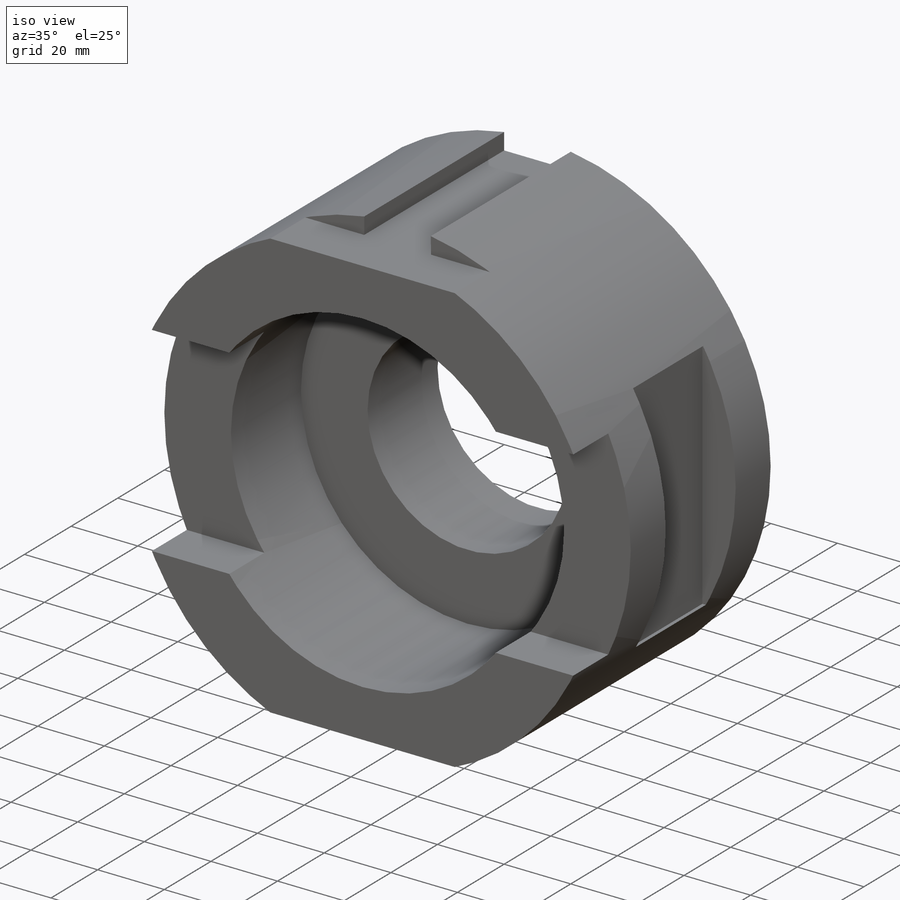
[diagram: iso view]
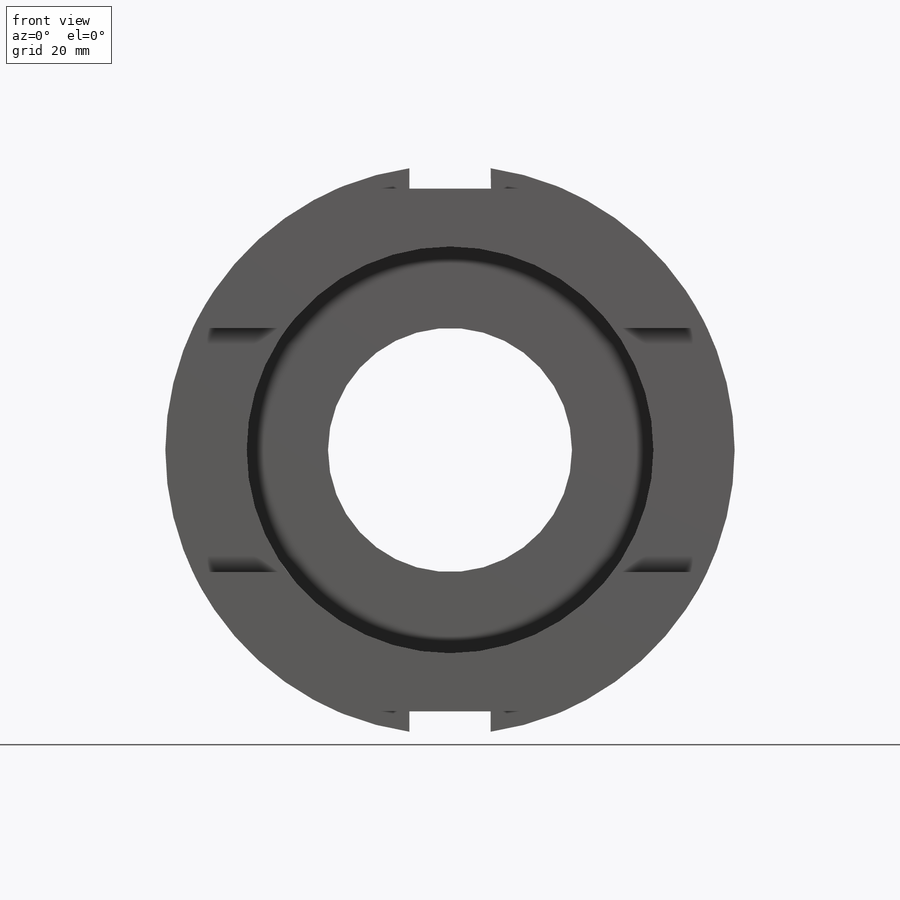
[diagram: front view]
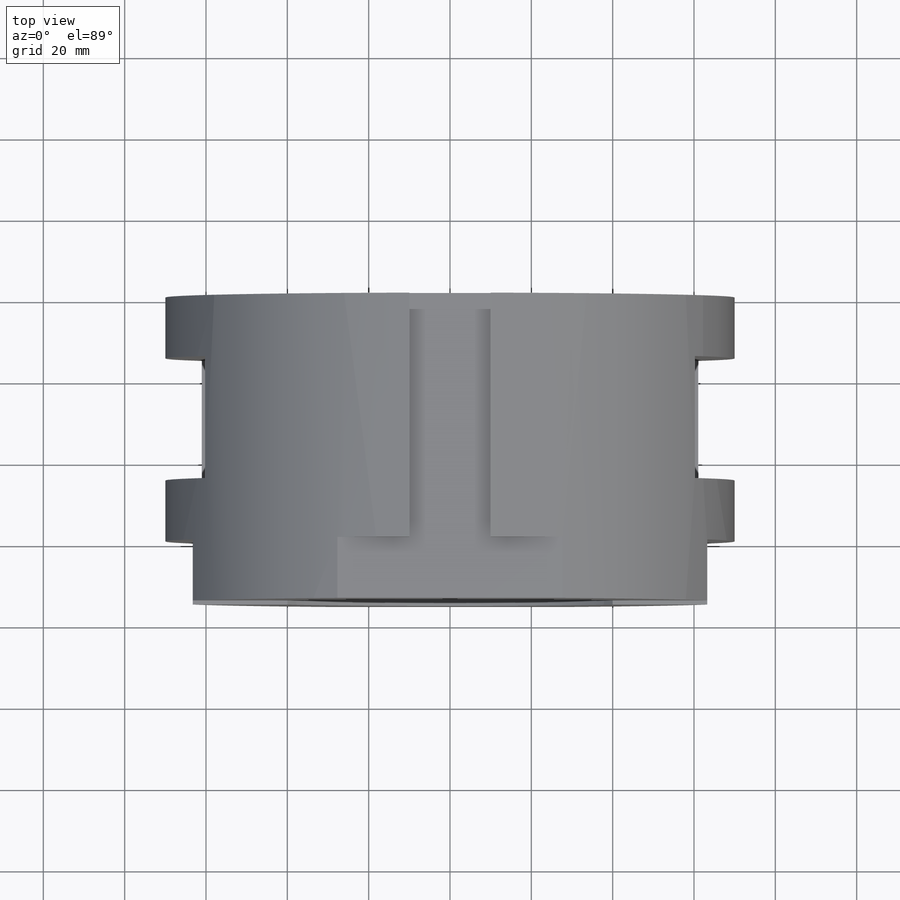
[diagram: top view]
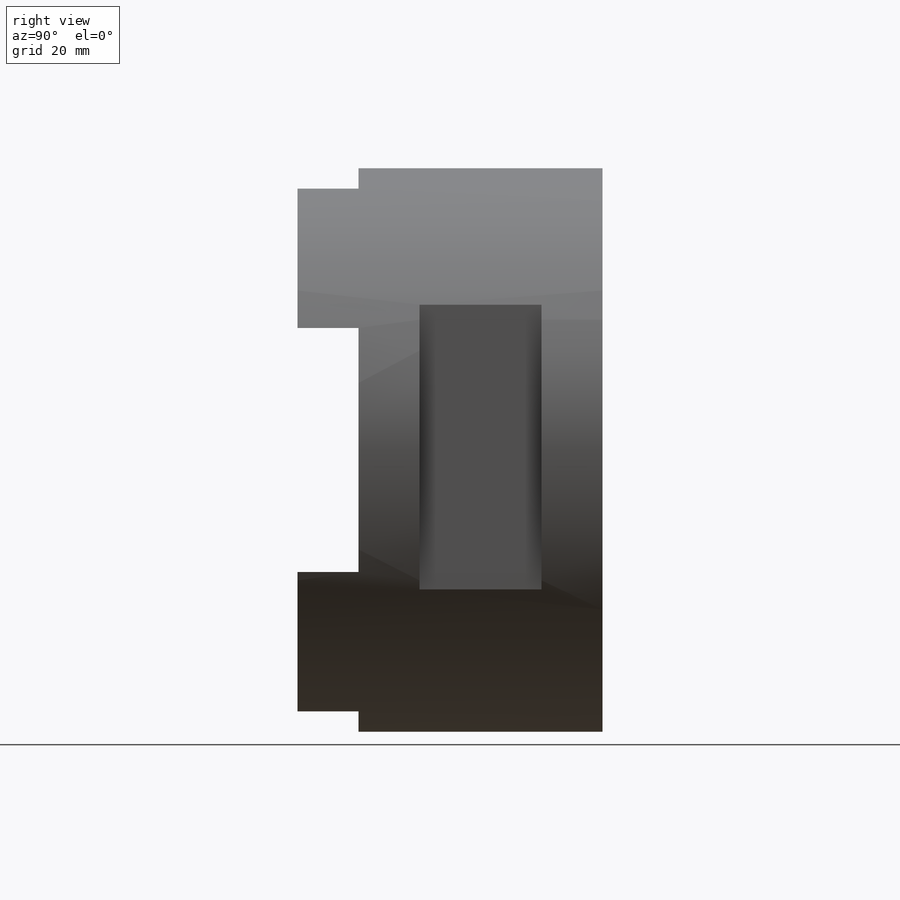
[diagram: right view]
SOLIDWORKS PART (.sldprt)
format: sldprt  version: not decoded by parser v0  size: 357,376 bytes
history: native  units: mm
features: sketch x16, cut_extrude x15, plane x3, material x1, extrude x1 (+13 scaffold rows collapsed)
feature tree (49):
  scaffold x13  (default folders/planes/origin — collapsed)
  material  "Material <not specified>"
  sketch  "Sketch1"  dims[D1=140.0mm]
  extrude  "Boss-Extrude1"  Depth=75mm
  sketch  "Sketch2"  dims[D1=60.0mm]
  cut_extrude  "Cut-Extrude1"  Depth=75mm
  sketch  "Sketch3"  dims[D1=20.0mm D2=0.0mm]
  cut_extrude  "Cut-Extrude2"  Depth=75mm
  sketch  "Sketch4"  dims[D1=20.0mm D2=10.0mm D3=0.0mm]
  cut_extrude  "Cut-Extrude3"  Depth=75mm
  plane  "Plane1"  Offset=60mm
  sketch  "Sketch5"  dims[D1=30.0mm D2=15.0mm D3=70.0mm D4=35.0mm]
  cut_extrude  "Cut-Extrude5"  Depth=75mm
  plane  "Plane2"  Offset=60mm
  sketch  "Sketch6"  dims[D1=30.0mm D2=15.0mm D3=35.0mm D4=70.0mm]
  cut_extrude  "Cut-Extrude6"  Depth=75mm
  sketch  "Sketch7"  dims[D1=0.0mm D2=15.0mm D3=15.0mm D4=15.0mm]
  cut_extrude  "Cut-Extrude11"  Depth=5mm
  sketch  "Sketch10"
  cut_extrude  "Cut-Extrude12"  Depth=88mm
  sketch  "Sketch12"
  cut_extrude  "Cut-Extrude14"  Depth=88mm
  sketch  "Sketch13"
  cut_extrude  "Cut-Extrude15"  Depth=88mm
  sketch  "Sketch14"  dims[D1=15.0mm D2=15.0mm D3=15.0mm D4=0.0mm]
  cut_extrude  "Cut-Extrude16"  Depth=5mm
  sketch  "Sketch15"  dims[D1=20.0mm]
  cut_extrude  "Cut-Extrude17"  Depth=73mm
  sketch  "Sketch16"
  cut_extrude  "Cut-Extrude18"  Depth=73mm
  sketch  "Sketch17"
  cut_extrude  "Cut-Extrude19"  Depth=73mm
  sketch  "Sketch18"  dims[D1=30.0mm D2=30.0mm D3=30.0mm D4=30.0mm]
  cut_extrude  "Cut-Extrude20"  Depth=15mm
  plane  "Plane3"  Offset=75mm
  sketch  "Sketch20"  dims[D1=100.0mm]
  cut_extrude  "Cut-Extrude21"  Depth=45mm
decode coverage: 27 of 32 modeling features carry decoded parameters
note: suppression state not decoded; provenance and decode notes live in map.json
